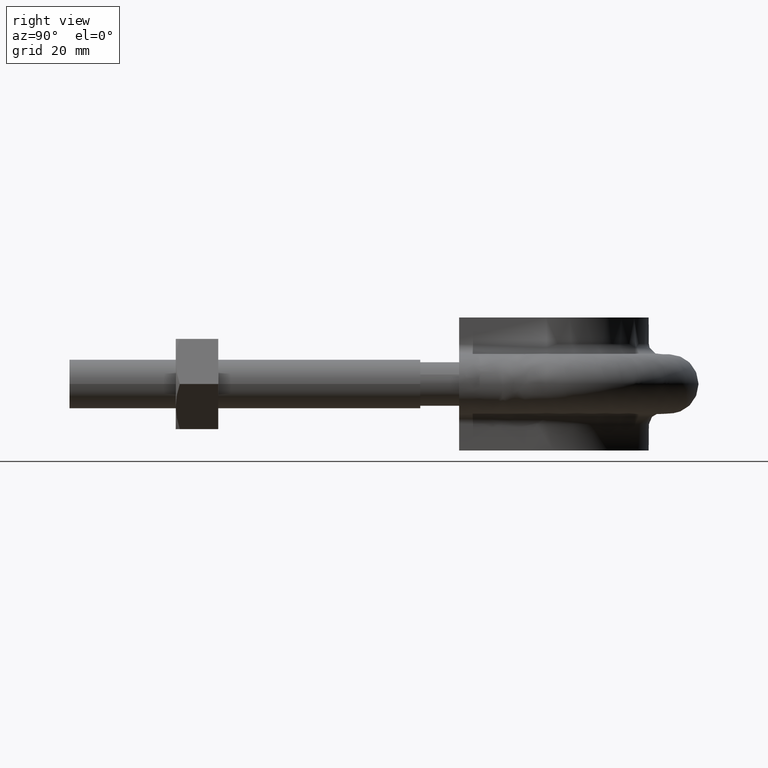
[diagram: clean part render]
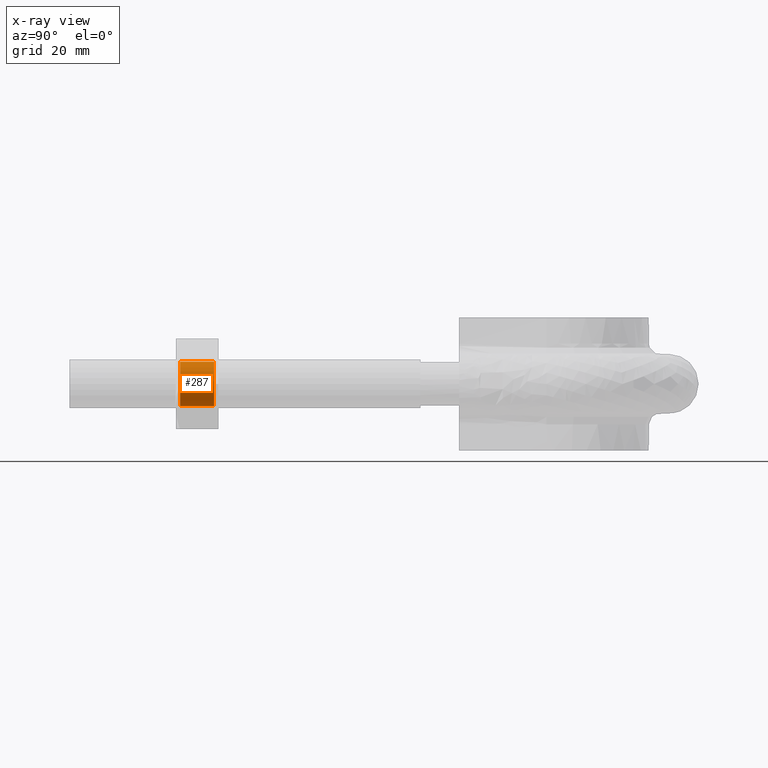
[diagram: x-ray — body ghosted, one internal face saturated and labeled with its STEP entity id]
A machine part, right view, then the same camera in x-ray: the body is ghosted and one INTERNAL B-rep face — a face not visible from any outside direction — is saturated and labeled: STEP entity #287.
In plain terms, the highlighted cylindrical surface (bore or boss wall) has radius 4.188 mm, axis along (-0, -1, -0).
Its self-contained STEP definition (entity closure, byte-faithful):
#287 = ADVANCED_FACE( '', ( #448, #449 ), #450, .F. );
#448 = FACE_OUTER_BOUND( '', #1445, .T. );
#449 = FACE_OUTER_BOUND( '', #1446, .T. );
#450 = CYLINDRICAL_SURFACE( '', #1447, 4.18800000000000 );
#1445 = EDGE_LOOP( '', ( #1948 ) );
#1446 = EDGE_LOOP( '', ( #1949 ) );
#1447 = AXIS2_PLACEMENT_3D( '', #1950, #1951, #1952 );
#1948 = ORIENTED_EDGE( '', *, *, #2150, .T. );
#1949 = ORIENTED_EDGE( '', *, *, #2151, .F. );
#1950 = CARTESIAN_POINT( '', ( 23.0000000000000, 28.0000000000000, 9.03086199571801E-015 ) );
#1951 = DIRECTION( '', ( -2.44921270764476E-016, -1.00000000000000, -3.06151588455594E-016 ) );
#1952 = DIRECTION( '', ( -0.866025403784439, 3.65183836637000E-016, -0.500000000000000 ) );
#2150 = EDGE_CURVE( '', #2397, #2397, #2398, .T. );
#2151 = EDGE_CURVE( '', #2399, #2399, #2400, .F. );
#2397 = VERTEX_POINT( '', #2988 );
#2398 = CIRCLE( '', #2989, 4.18800000000000 );
#2399 = VERTEX_POINT( '', #2990 );
#2400 = CIRCLE( '', #2991, 4.18800000000000 );
#2988 = CARTESIAN_POINT( '', ( 23.0000000000000, 27.1880000000000, 4.18800000000001 ) );
#2989 = AXIS2_PLACEMENT_3D( '', #3223, #3224, #3225 );
#2990 = CARTESIAN_POINT( '', ( 23.0000000000000, 20.8120000000000, -4.18799999999999 ) );
#2991 = AXIS2_PLACEMENT_3D( '', #3226, #3227, #3228 );
#3223 = CARTESIAN_POINT( '', ( 23.0000000000000, 27.1880000000000, 8.78226690589207E-015 ) );
#3224 = DIRECTION( '', ( 2.44921270764476E-016, 1.00000000000000, 3.06151588455594E-016 ) );
#3225 = DIRECTION( '', ( 0.000000000000000, -3.06151588455594E-016, 1.00000000000000 ) );
#3226 = CARTESIAN_POINT( '', ( 23.0000000000000, 20.8120000000000, 6.83024437789920E-015 ) );
#3227 = DIRECTION( '', ( -2.44921270764476E-016, -1.00000000000000, -3.06151588455594E-016 ) );
#3228 = DIRECTION( '', ( 0.000000000000000, 3.06151588455594E-016, -1.00000000000000 ) );